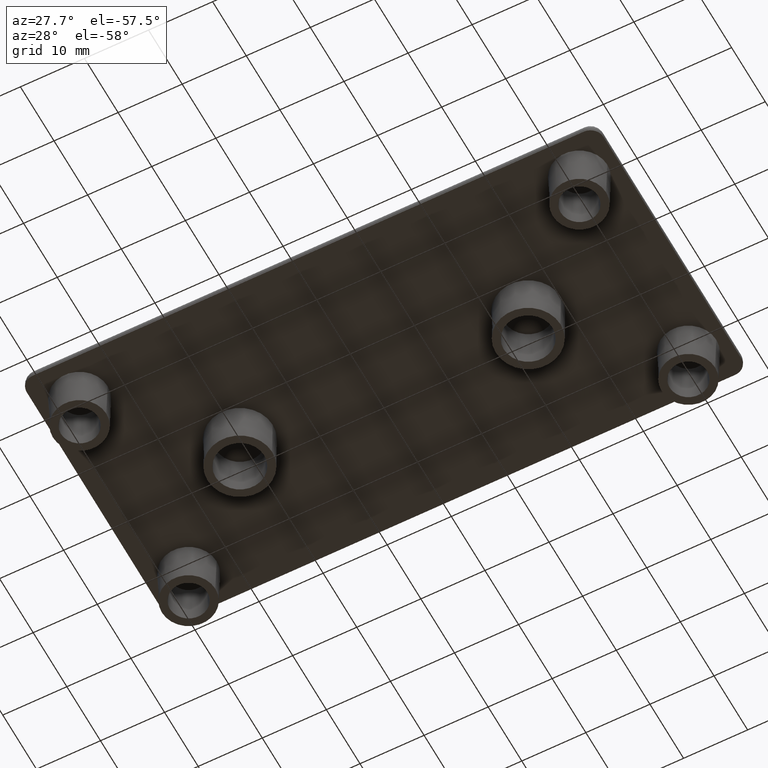
[diagram: clean part render]
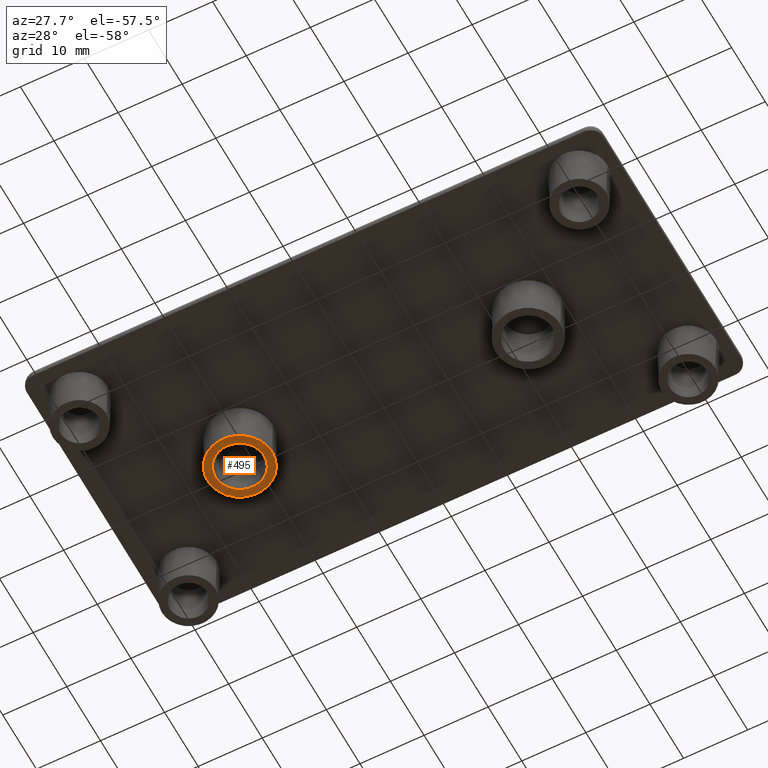
[diagram: same view with one face highlighted and labeled with its STEP entity id]
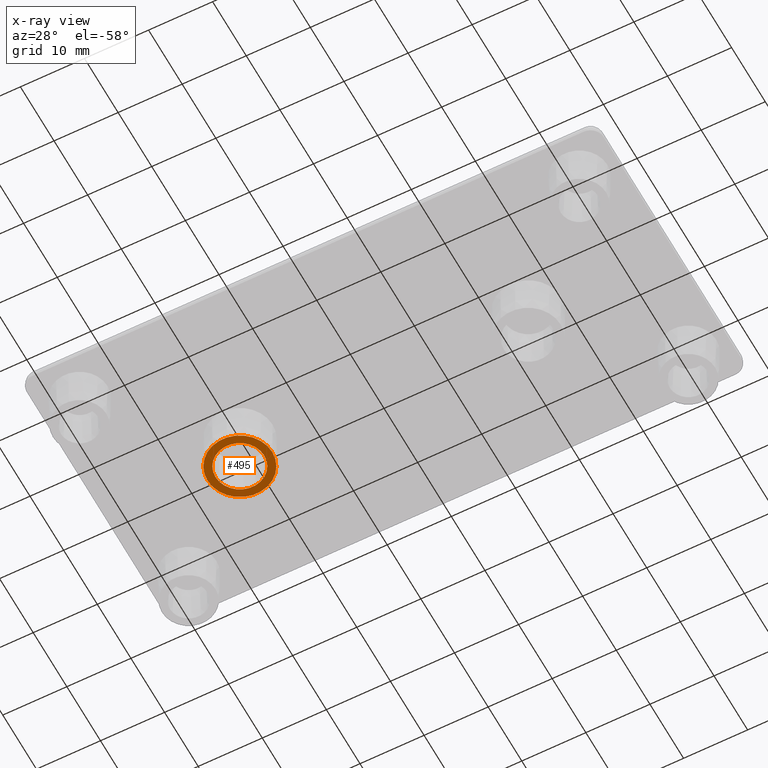
[diagram: x-ray of the same camera — body ghosted, the highlighted face saturated]
A machine part, auxiliary view. The second image highlights one B-rep face of the part: STEP entity #495.
The next image is the same camera in x-ray: the body ghosted, the highlighted face saturated — about 0% of this face is hidden behind the body in this view.
In plain terms, the highlighted planar face has unit normal (0, 0, 1).
Its self-contained STEP definition (entity closure, byte-faithful):
#67=PLANE('',#543);
#87=FACE_BOUND('',#156,.T.);
#111=FACE_OUTER_BOUND('',#155,.T.);
#155=EDGE_LOOP('',(#365));
#156=EDGE_LOOP('',(#366));
#217=CIRCLE('',#538,3.8);
#219=CIRCLE('',#541,5.05);
#257=VERTEX_POINT('',#807);
#259=VERTEX_POINT('',#812);
#301=EDGE_CURVE('',#257,#257,#217,.T.);
#303=EDGE_CURVE('',#259,#259,#219,.T.);
#365=ORIENTED_EDGE('',*,*,#303,.T.);
#366=ORIENTED_EDGE('',*,*,#301,.T.);
#495=ADVANCED_FACE('',(#111,#87),#67,.F.);
#538=AXIS2_PLACEMENT_3D('',#808,#623,#624);
#541=AXIS2_PLACEMENT_3D('',#813,#629,#630);
#543=AXIS2_PLACEMENT_3D('',#816,#633,#634);
#623=DIRECTION('center_axis',(0.,0.,1.));
#624=DIRECTION('ref_axis',(-1.,0.,0.));
#629=DIRECTION('center_axis',(0.,0.,-1.));
#630=DIRECTION('ref_axis',(-1.,0.,0.));
#633=DIRECTION('center_axis',(0.,0.,1.));
#634=DIRECTION('ref_axis',(1.,0.,0.));
#807=CARTESIAN_POINT('',(-18.7,4.65365783675994E-16,-7.));
#808=CARTESIAN_POINT('Origin',(-22.5,0.,-7.));
#812=CARTESIAN_POINT('',(-17.45,6.18446633569413E-16,-7.));
#813=CARTESIAN_POINT('Origin',(-22.5,0.,-7.));
#816=CARTESIAN_POINT('Origin',(-22.5,9.16025597875542E-17,-7.));